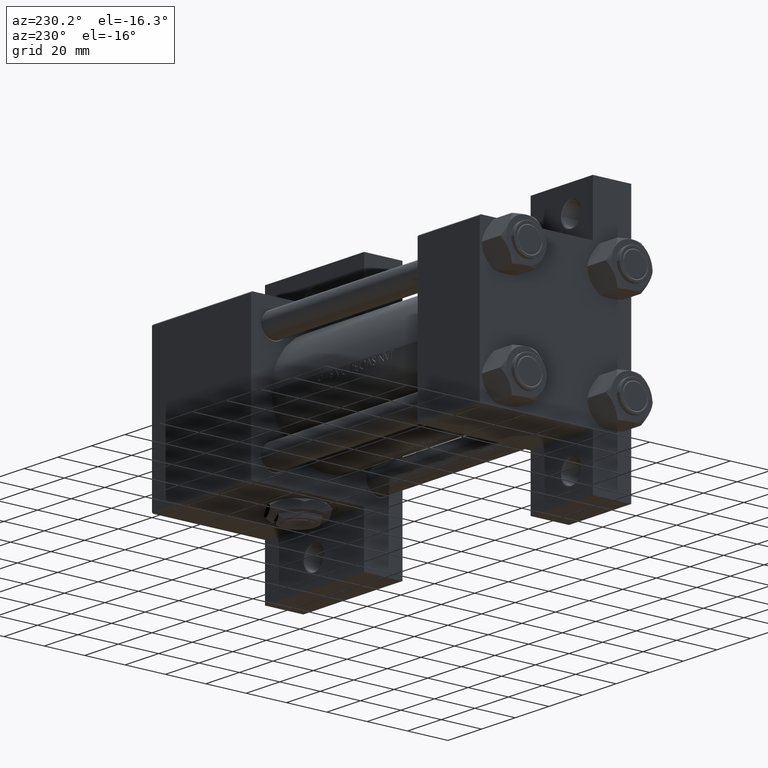
[diagram: clean part render]
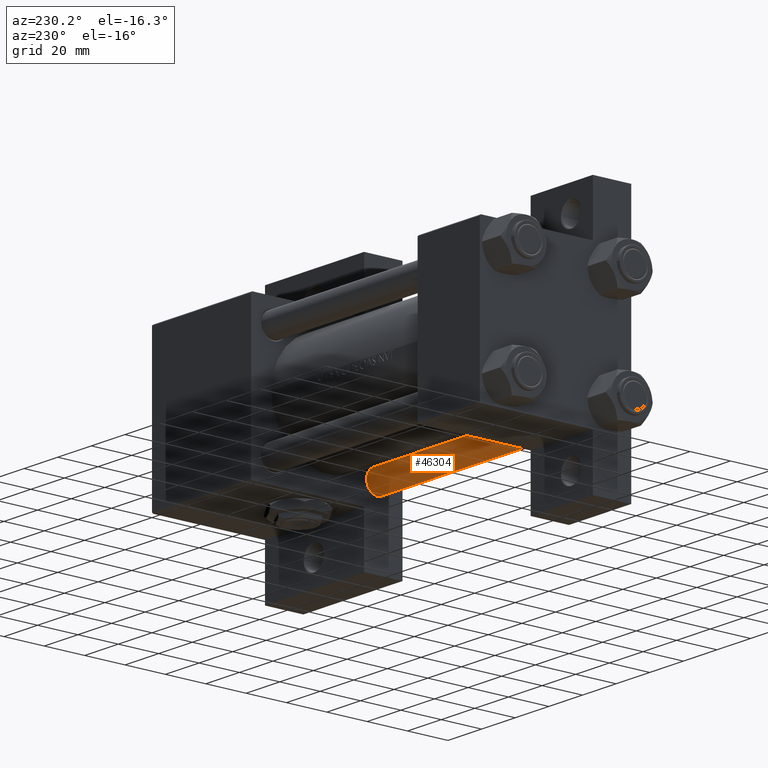
[diagram: same view with one face highlighted and labeled with its STEP entity id]
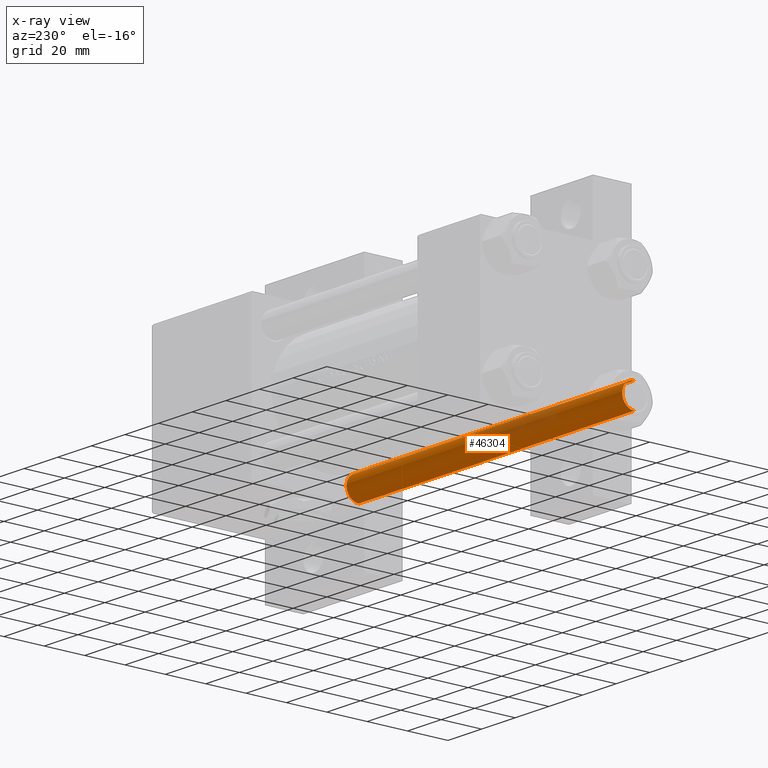
[diagram: x-ray of the same camera — body ghosted, the highlighted face saturated]
A machine part, auxiliary view. The second image highlights one B-rep face of the part: STEP entity #46304.
The next image is the same camera in x-ray: the body ghosted, the highlighted face saturated — about 14% of this face is hidden behind the body in this view.
In plain terms, the highlighted cylindrical surface (edge-blend (fillet) strip) has radius 6 mm, axis along (-1, 0, 0).
Its self-contained STEP definition (entity closure, byte-faithful):
#477 = VERTEX_POINT ( 'NONE', #18823 ) ;
#1910 = DIRECTION ( 'NONE',  ( -1.000000000000000000, 0.000000000000000000, 0.000000000000000000 ) ) ;
#2149 = FACE_OUTER_BOUND ( 'NONE', #46816, .T. ) ;
#3034 = VERTEX_POINT ( 'NONE', #21220 ) ;
#3365 = EDGE_CURVE ( 'NONE', #30863, #3034, #49085, .T. ) ;
#3513 = CARTESIAN_POINT ( 'NONE',  ( 6.000000000000000888, 7.347880794884120722E-16, 165.0000000000000000 ) ) ;
#4144 = VECTOR ( 'NONE', #46382, 1000.000000000000000 ) ;
#4647 = ORIENTED_EDGE ( 'NONE', *, *, #18875, .T. ) ;
#5258 = CARTESIAN_POINT ( 'NONE',  ( 6.000000000000000888, 7.347880794884120722E-16, 164.5000000000000000 ) ) ;
#5279 = DIRECTION ( 'NONE',  ( 1.000000000000000000, 0.000000000000000000, 0.000000000000000000 ) ) ;
#6381 = CARTESIAN_POINT ( 'NONE',  ( 0.000000000000000000, 0.000000000000000000, 165.0000000000000000 ) ) ;
#7008 = LINE ( 'NONE', #3513, #37819 ) ;
#8775 = LINE ( 'NONE', #42632, #4144 ) ;
#11360 = CARTESIAN_POINT ( 'NONE',  ( 0.000000000000000000, 0.000000000000000000, 0.5000000000000281997 ) ) ;
#12515 = DIRECTION ( 'NONE',  ( -0.000000000000000000, -0.000000000000000000, 1.000000000000000000 ) ) ;
#14112 = AXIS2_PLACEMENT_3D ( 'NONE', #37092, #16942, #40336 ) ;
#16942 = DIRECTION ( 'NONE',  ( 0.000000000000000000, 0.000000000000000000, -1.000000000000000000 ) ) ;
#18218 = EDGE_CURVE ( 'NONE', #3034, #20870, #8775, .T. ) ;
#18823 = CARTESIAN_POINT ( 'NONE',  ( 6.000000000000000888, 7.347880794884120722E-16, 0.5000000000000281997 ) ) ;
#18875 = EDGE_CURVE ( 'NONE', #20870, #477, #24822, .T. ) ;
#19889 = AXIS2_PLACEMENT_3D ( 'NONE', #6381, #36989, #1910 ) ;
#20540 = ORIENTED_EDGE ( 'NONE', *, *, #3365, .T. ) ;
#20870 = VERTEX_POINT ( 'NONE', #33524 ) ;
#21220 = CARTESIAN_POINT ( 'NONE',  ( -6.000000000000000888, 0.000000000000000000, 164.5000000000000000 ) ) ;
#22913 = DIRECTION ( 'NONE',  ( -0.000000000000000000, -0.000000000000000000, -1.000000000000000000 ) ) ;
#24822 = CIRCLE ( 'NONE', #25613, 6.000000000000000888 ) ;
#25613 = AXIS2_PLACEMENT_3D ( 'NONE', #11360, #12515, #5279 ) ;
#29532 = CYLINDRICAL_SURFACE ( 'NONE', #19889, 6.000000000000000888 ) ;
#30863 = VERTEX_POINT ( 'NONE', #5258 ) ;
#31789 = EDGE_CURVE ( 'NONE', #30863, #477, #7008, .T. ) ;
#33524 = CARTESIAN_POINT ( 'NONE',  ( -6.000000000000000888, 0.000000000000000000, 0.5000000000000281997 ) ) ;
#36989 = DIRECTION ( 'NONE',  ( -0.000000000000000000, -0.000000000000000000, -1.000000000000000000 ) ) ;
#37092 = CARTESIAN_POINT ( 'NONE',  ( 0.000000000000000000, 0.000000000000000000, 164.5000000000000000 ) ) ;
#37210 = ORIENTED_EDGE ( 'NONE', *, *, #31789, .F. ) ;
#37819 = VECTOR ( 'NONE', #22913, 1000.000000000000000 ) ;
#40336 = DIRECTION ( 'NONE',  ( 1.000000000000000000, 0.000000000000000000, 0.000000000000000000 ) ) ;
#42632 = CARTESIAN_POINT ( 'NONE',  ( -6.000000000000000888, 0.000000000000000000, 165.0000000000000000 ) ) ;
#46304 = ADVANCED_FACE ( 'NONE', ( #2149 ), #29532, .T. ) ;
#46382 = DIRECTION ( 'NONE',  ( -0.000000000000000000, -0.000000000000000000, -1.000000000000000000 ) ) ;
#46816 = EDGE_LOOP ( 'NONE', ( #37210, #20540, #47448, #4647 ) ) ;
#47448 = ORIENTED_EDGE ( 'NONE', *, *, #18218, .T. ) ;
#49085 = CIRCLE ( 'NONE', #14112, 6.000000000000000888 ) ;